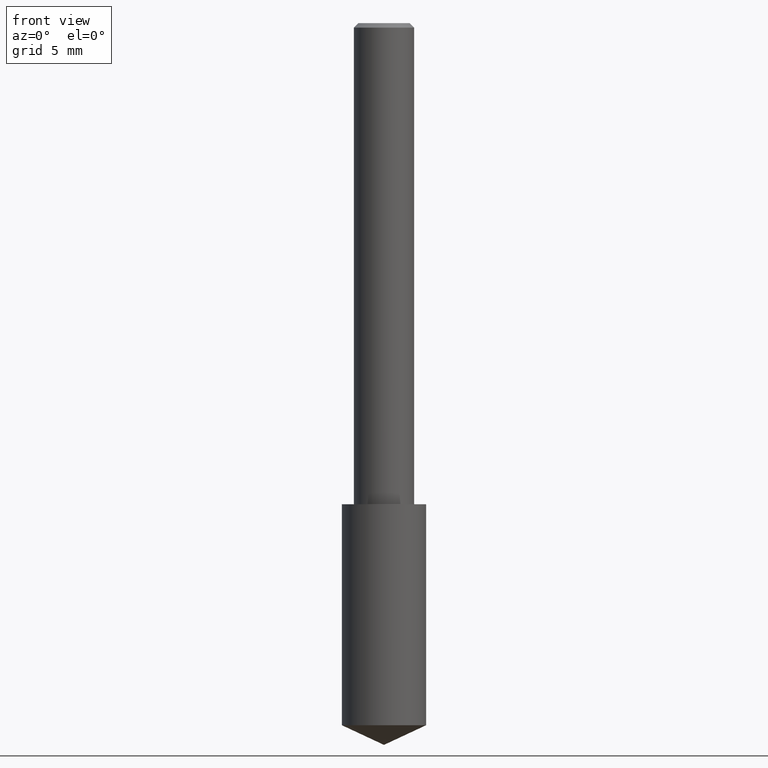
[diagram: clean part render]
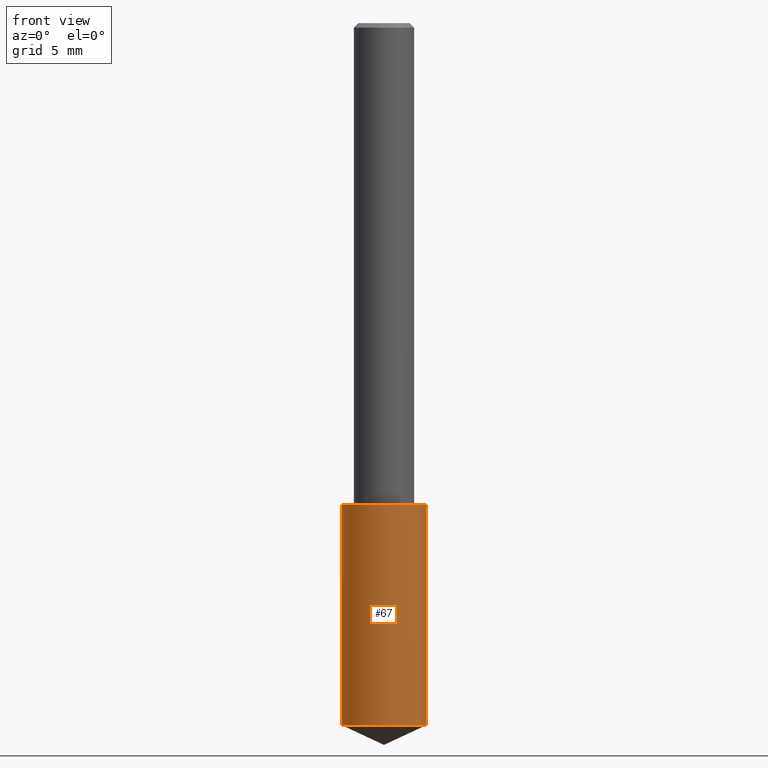
[diagram: same view with one face highlighted and labeled with its STEP entity id]
A machine part, front view. The second image highlights one B-rep face of the part: STEP entity #67.
In plain terms, the highlighted cylindrical surface (partial cylindrical patch) has radius 2.225 mm, axis along (-0, 0, 1).
Its self-contained STEP definition (entity closure, byte-faithful):
#5 = DIRECTION ( 'NONE',  ( -2.445468806185136597E-29, 3.491481338843145583E-15, 1.000000000000000000 ) ) ;
#6 = EDGE_CURVE ( 'NONE', #238, #34, #187, .T. ) ;
#8 = CARTESIAN_POINT ( 'NONE',  ( 0.08759999999999999731, -4.103188869408462916E-15, -1.000000000000000222 ) ) ;
#16 = ORIENTED_EDGE ( 'NONE', *, *, #117, .F. ) ;
#17 = DIRECTION ( 'NONE',  ( -2.445468806185136877E-29, 3.491481338843145188E-15, 1.000000000000000000 ) ) ;
#18 = CARTESIAN_POINT ( 'NONE',  ( -0.08759999999999995568, -4.472164618712027230E-15, -1.459151449145622781 ) ) ;
#19 = DIRECTION ( 'NONE',  ( 1.000000000000000000, -6.982962677686269077E-15, 0.000000000000000000 ) ) ;
#30 = VECTOR ( 'NONE', #17, 39.37007874015748143 ) ;
#34 = VERTEX_POINT ( 'NONE', #105 ) ;
#45 = EDGE_LOOP ( 'NONE', ( #149, #215, #133, #16 ) ) ;
#51 = EDGE_CURVE ( 'NONE', #219, #126, #161, .T. ) ;
#60 = FACE_OUTER_BOUND ( 'NONE', #45, .T. ) ;
#67 = ADVANCED_FACE ( 'NONE', ( #60 ), #96, .T. ) ;
#75 = VECTOR ( 'NONE', #210, 39.37007874015748143 ) ;
#86 = CARTESIAN_POINT ( 'NONE',  ( 2.445468806185136877E-29, -3.491481338843145977E-15, -1.000000000000000222 ) ) ;
#96 = CYLINDRICAL_SURFACE ( 'NONE', #328, 0.08759999999999999731 ) ;
#105 = CARTESIAN_POINT ( 'NONE',  ( -0.08759999999999999731, -3.670605260514662288E-15, -1.000000000000000222 ) ) ;
#117 = EDGE_CURVE ( 'NONE', #34, #126, #307, .T. ) ;
#126 = VERTEX_POINT ( 'NONE', #8 ) ;
#133 = ORIENTED_EDGE ( 'NONE', *, *, #51, .T. ) ;
#148 = CARTESIAN_POINT ( 'NONE',  ( -0.08759999999999999731, -2.869045902317298924E-15, -1.000000000000000222 ) ) ;
#149 = ORIENTED_EDGE ( 'NONE', *, *, #6, .F. ) ;
#161 = LINE ( 'NONE', #261, #75 ) ;
#187 = LINE ( 'NONE', #148, #30 ) ;
#204 = AXIS2_PLACEMENT_3D ( 'NONE', #86, #5, #257 ) ;
#210 = DIRECTION ( 'NONE',  ( -2.445468806185136877E-29, 3.491481338843145188E-15, 1.000000000000000000 ) ) ;
#215 = ORIENTED_EDGE ( 'NONE', *, *, #247, .T. ) ;
#219 = VERTEX_POINT ( 'NONE', #327 ) ;
#233 = CIRCLE ( 'NONE', #258, 0.08759999999999999731 ) ;
#238 = VERTEX_POINT ( 'NONE', #18 ) ;
#247 = EDGE_CURVE ( 'NONE', #238, #219, #233, .T. ) ;
#250 = CARTESIAN_POINT ( 'NONE',  ( 2.445468806185137438E-29, -3.491481338843146371E-15, -1.000000000000000222 ) ) ;
#257 = DIRECTION ( 'NONE',  ( 1.000000000000000000, -6.982962677686269077E-15, 0.000000000000000000 ) ) ;
#258 = AXIS2_PLACEMENT_3D ( 'NONE', #297, #333, #19 ) ;
#261 = CARTESIAN_POINT ( 'NONE',  ( 0.08759999999999999731, -4.103188869408462916E-15, -1.000000000000000222 ) ) ;
#286 = DIRECTION ( 'NONE',  ( -2.445468806185136597E-29, 3.491481338843145583E-15, 1.000000000000000000 ) ) ;
#297 = CARTESIAN_POINT ( 'NONE',  ( 3.568309352385458231E-29, -5.094600055237875073E-15, -1.459151449145622781 ) ) ;
#307 = CIRCLE ( 'NONE', #204, 0.08759999999999999731 ) ;
#310 = DIRECTION ( 'NONE',  ( 1.000000000000000000, -6.982962677686263555E-15, 0.000000000000000000 ) ) ;
#327 = CARTESIAN_POINT ( 'NONE',  ( 0.08759999999999995568, -5.706307585803191222E-15, -1.459151449145622781 ) ) ;
#328 = AXIS2_PLACEMENT_3D ( 'NONE', #250, #286, #310 ) ;
#333 = DIRECTION ( 'NONE',  ( -2.445468806185136597E-29, 3.491481338843145583E-15, 1.000000000000000000 ) ) ;